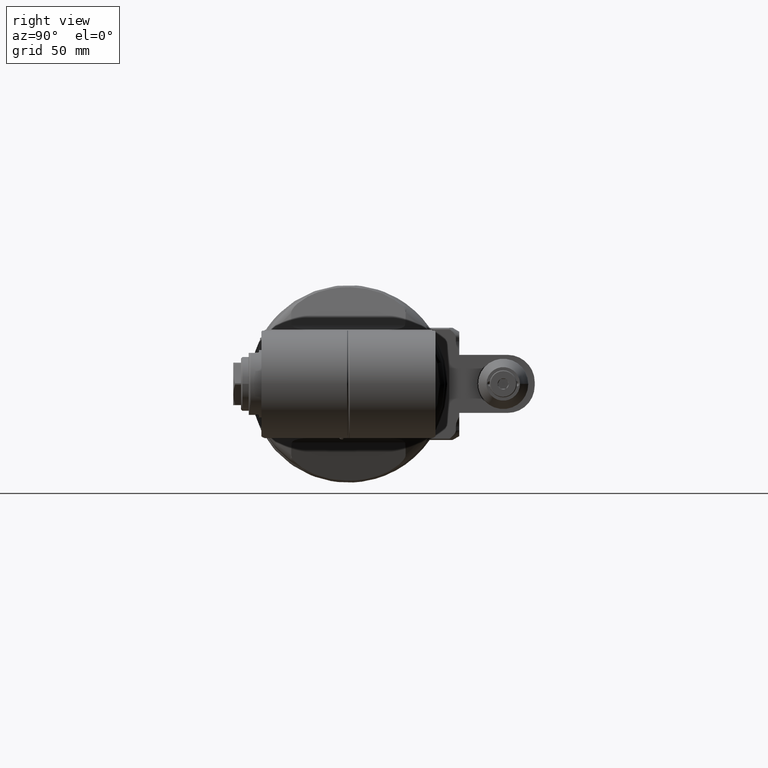
[diagram: clean part render]
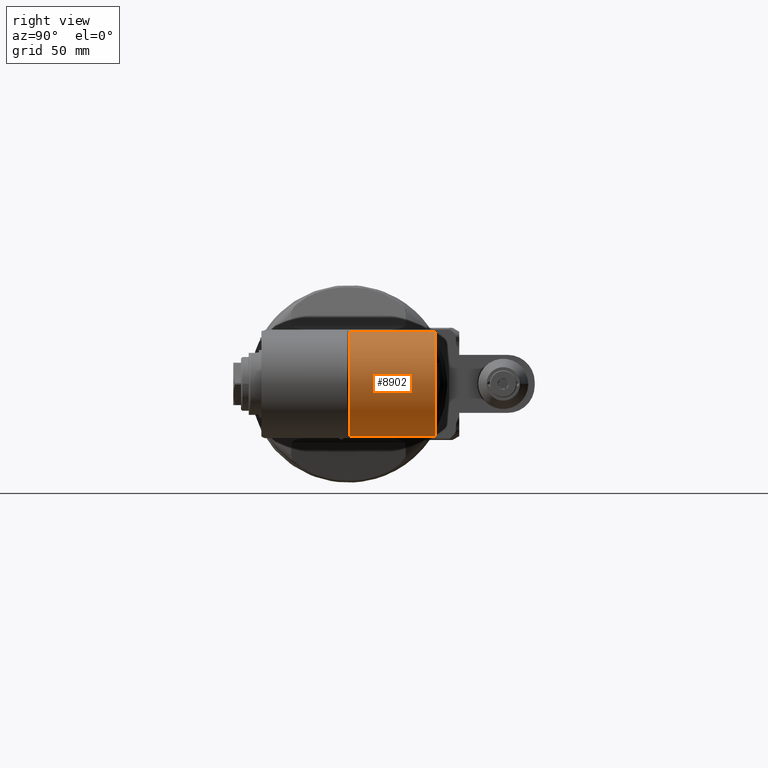
[diagram: same view with one face highlighted and labeled with its STEP entity id]
A machine part, right view. The second image highlights one B-rep face of the part: STEP entity #8902.
In plain terms, the highlighted cylindrical surface (partial cylindrical patch) has radius 27 mm, axis along (0, 1, 0).
Its self-contained STEP definition (entity closure, byte-faithful):
#1102=FACE_OUTER_BOUND('',#1688,.T.);
#1688=EDGE_LOOP('',(#7839,#7840,#7841,#7842));
#2109=CIRCLE('',#9704,1.06299212598425);
#2151=CIRCLE('',#9797,1.06299212598425);
#2836=LINE('',#57148,#3392);
#2863=LINE('',#57529,#3419);
#3392=VECTOR('',#11691,1.74544545571063);
#3419=VECTOR('',#11888,1.74544545571063);
#4180=VERTEX_POINT('',#57078);
#4190=VERTEX_POINT('',#57130);
#4192=VERTEX_POINT('',#57136);
#4259=VERTEX_POINT('',#57527);
#5376=EDGE_CURVE('',#4190,#4180,#2109,.T.);
#5383=EDGE_CURVE('',#4192,#4180,#2836,.T.);
#5484=EDGE_CURVE('',#4190,#4259,#2863,.T.);
#5486=EDGE_CURVE('',#4192,#4259,#2151,.T.);
#7839=ORIENTED_EDGE('',*,*,#5486,.F.);
#7840=ORIENTED_EDGE('',*,*,#5383,.T.);
#7841=ORIENTED_EDGE('',*,*,#5376,.F.);
#7842=ORIENTED_EDGE('',*,*,#5484,.T.);
#8457=CYLINDRICAL_SURFACE('',#9796,1.06299212598425);
#8902=ADVANCED_FACE('',(#1102),#8457,.T.);
#9704=AXIS2_PLACEMENT_3D('',#57132,#11679,#11680);
#9796=AXIS2_PLACEMENT_3D('',#57532,#11893,#11894);
#9797=AXIS2_PLACEMENT_3D('',#57533,#11895,#11896);
#11679=DIRECTION('center_axis',(0.,1.,0.));
#11680=DIRECTION('ref_axis',(0.0871557427478227,0.,0.996194698091731));
#11691=DIRECTION('',(-1.859123302981E-14,1.,0.));
#11888=DIRECTION('',(-2.884846504626E-14,-1.,0.));
#11893=DIRECTION('center_axis',(0.,1.,0.));
#11894=DIRECTION('ref_axis',(1.,0.,9.00424887691599E-15));
#11895=DIRECTION('center_axis',(0.,-1.,0.));
#11896=DIRECTION('ref_axis',(1.,0.,0.));
#57078=CARTESIAN_POINT('',(7.57296082890551,1.77165354330709,-1.0589471200189));
#57130=CARTESIAN_POINT('',(7.57296082890551,1.77165354330709,1.0589471200189));
#57132=CARTESIAN_POINT('Origin',(7.48031496062992,1.77165354330709,0.));
#57136=CARTESIAN_POINT('',(7.57296082890551,0.0262080875964291,-1.0589471200189));
#57148=CARTESIAN_POINT('',(7.57296082890551,0.0262080875964291,-1.0589471200189));
#57527=CARTESIAN_POINT('',(7.57296082890551,0.0262080875964252,1.0589471200189));
#57529=CARTESIAN_POINT('',(7.57296082890551,1.77165354330709,1.0589471200189));
#57532=CARTESIAN_POINT('Origin',(7.48031496062992,-2.12598434645669,0.));
#57533=CARTESIAN_POINT('Origin',(7.48031496062992,0.0262080875964291,0.));